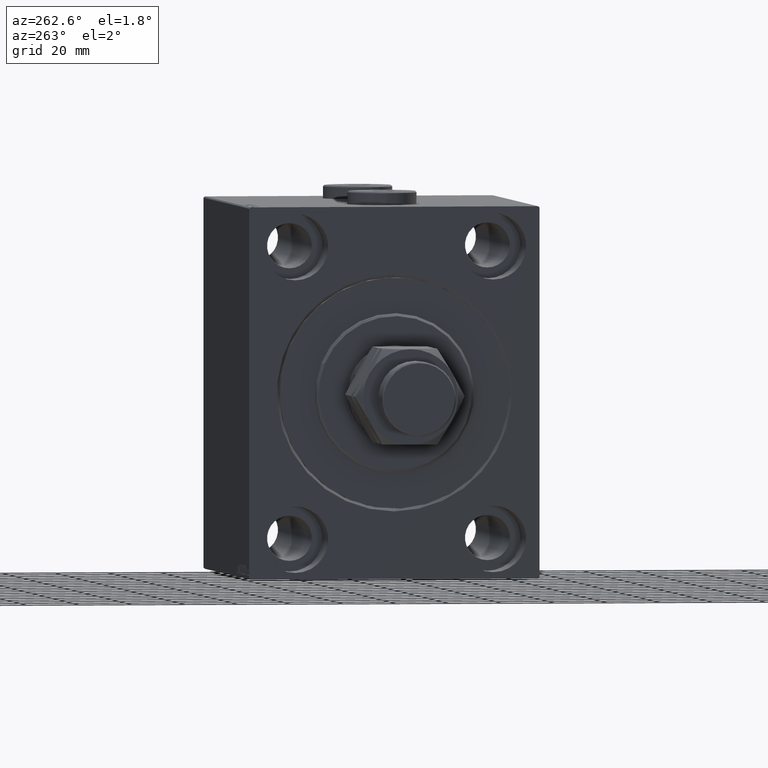
[diagram: clean part render]
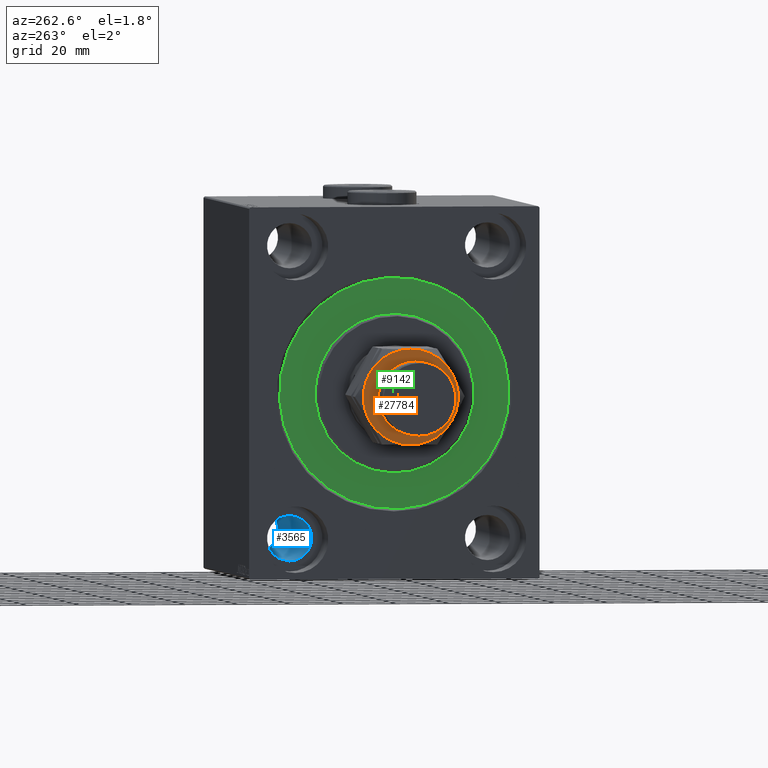
[diagram: same view with three faces highlighted in distinct colors, each labeled with its STEP entity id]
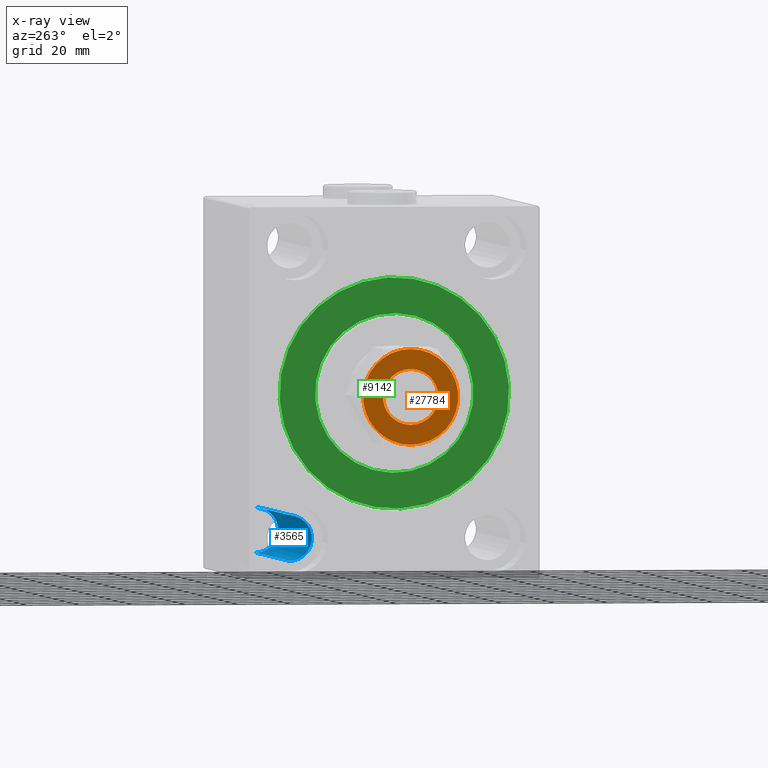
[diagram: x-ray of the same camera — body ghosted, the three highlighted faces saturated]
A machine part, auxiliary view with three faces highlighted in distinct colors.
The next image is the same camera in x-ray (body ghosted, the three faces saturated) — at least one of them is partly hidden behind the body in this view.
Their STEP definitions:

[orange] entity #27784 — the highlighted planar face has unit normal (-1, 0, 0).
#792 = VERTEX_POINT ( 'NONE', #11089 ) ;
#814 = DIRECTION ( 'NONE',  ( 0.000000000000000000, 0.000000000000000000, 1.000000000000000000 ) ) ;
#1730 = ORIENTED_EDGE ( 'NONE', *, *, #36325, .T. ) ;
#2429 = EDGE_CURVE ( 'NONE', #27737, #37353, #19539, .T. ) ;
#2515 = AXIS2_PLACEMENT_3D ( 'NONE', #6896, #21632, #36152 ) ;
#2616 = AXIS2_PLACEMENT_3D ( 'NONE', #16016, #814, #15309 ) ;
#3070 = CARTESIAN_POINT ( 'NONE',  ( 0.000000000000000000, 0.000000000000000000, 34.00000000000000000 ) ) ;
#3782 = CIRCLE ( 'NONE', #20484, 10.49999999999999822 ) ;
#3787 = CARTESIAN_POINT ( 'NONE',  ( -9.000000000000000000, 15.58845726811988897, 34.00000000000000000 ) ) ;
#3986 = DIRECTION ( 'NONE',  ( 0.000000000000000000, 0.000000000000000000, 1.000000000000000000 ) ) ;
#4527 = CARTESIAN_POINT ( 'NONE',  ( 0.000000000000000000, 0.000000000000000000, 34.00000000000000000 ) ) ;
#4629 = AXIS2_PLACEMENT_3D ( 'NONE', #4527, #37358, #4759 ) ;
#4759 = DIRECTION ( 'NONE',  ( 1.000000000000000000, 0.000000000000000000, 0.000000000000000000 ) ) ;
#5254 = CARTESIAN_POINT ( 'NONE',  ( 0.000000000000000000, 0.000000000000000000, 34.00000000000000000 ) ) ;
#6896 = CARTESIAN_POINT ( 'NONE',  ( 0.000000000000000000, 0.000000000000000000, 34.00000000000000000 ) ) ;
#7098 = DIRECTION ( 'NONE',  ( 1.000000000000000000, 0.000000000000000000, 0.000000000000000000 ) ) ;
#8444 = DIRECTION ( 'NONE',  ( 0.000000000000000000, 0.000000000000000000, 1.000000000000000000 ) ) ;
#9140 = VERTEX_POINT ( 'NONE', #40618 ) ;
#9741 = FACE_BOUND ( 'NONE', #11188, .T. ) ;
#10404 = EDGE_LOOP ( 'NONE', ( #35350, #22254, #46229, #1730, #22459, #12201 ) ) ;
#10836 = DIRECTION ( 'NONE',  ( 1.000000000000000000, 0.000000000000000000, 0.000000000000000000 ) ) ;
#10838 = ORIENTED_EDGE ( 'NONE', *, *, #43616, .T. ) ;
#11089 = CARTESIAN_POINT ( 'NONE',  ( -9.000000000000000000, -15.58845726811989074, 34.00000000000000000 ) ) ;
#11104 = CARTESIAN_POINT ( 'NONE',  ( 0.000000000000000000, 0.000000000000000000, 34.00000000000000000 ) ) ;
#11188 = EDGE_LOOP ( 'NONE', ( #17414, #10838 ) ) ;
#12201 = ORIENTED_EDGE ( 'NONE', *, *, #18691, .T. ) ;
#12304 = EDGE_CURVE ( 'NONE', #9140, #32121, #3782, .T. ) ;
#13398 = CIRCLE ( 'NONE', #25571, 17.99999999999999645 ) ;
#13458 = CIRCLE ( 'NONE', #43119, 10.49999999999999822 ) ;
#14032 = VERTEX_POINT ( 'NONE', #3787 ) ;
#15119 = CARTESIAN_POINT ( 'NONE',  ( 0.000000000000000000, 0.000000000000000000, 34.00000000000000000 ) ) ;
#15309 = DIRECTION ( 'NONE',  ( 1.000000000000000000, 0.000000000000000000, 0.000000000000000000 ) ) ;
#15345 = CARTESIAN_POINT ( 'NONE',  ( 0.000000000000000000, 0.000000000000000000, 34.00000000000000000 ) ) ;
#15606 = CIRCLE ( 'NONE', #39935, 17.99999999999999645 ) ;
#16016 = CARTESIAN_POINT ( 'NONE',  ( 0.000000000000000000, 0.000000000000000000, 34.00000000000000000 ) ) ;
#16514 = VERTEX_POINT ( 'NONE', #28675 ) ;
#17334 = DIRECTION ( 'NONE',  ( -0.000000000000000000, -0.000000000000000000, -1.000000000000000000 ) ) ;
#17414 = ORIENTED_EDGE ( 'NONE', *, *, #12304, .T. ) ;
#18691 = EDGE_CURVE ( 'NONE', #792, #39961, #26669, .T. ) ;
#18718 = DIRECTION ( 'NONE',  ( 1.000000000000000000, 0.000000000000000000, 0.000000000000000000 ) ) ;
#18996 = DIRECTION ( 'NONE',  ( 0.000000000000000000, 0.000000000000000000, 1.000000000000000000 ) ) ;
#19539 = CIRCLE ( 'NONE', #37003, 17.99999999999999645 ) ;
#20484 = AXIS2_PLACEMENT_3D ( 'NONE', #3070, #17334, #7098 ) ;
#21632 = DIRECTION ( 'NONE',  ( 0.000000000000000000, 0.000000000000000000, 1.000000000000000000 ) ) ;
#22254 = ORIENTED_EDGE ( 'NONE', *, *, #2429, .T. ) ;
#22459 = ORIENTED_EDGE ( 'NONE', *, *, #38859, .T. ) ;
#22731 = DIRECTION ( 'NONE',  ( -0.000000000000000000, -0.000000000000000000, -1.000000000000000000 ) ) ;
#23133 = CIRCLE ( 'NONE', #2616, 17.99999999999999645 ) ;
#25210 = FACE_OUTER_BOUND ( 'NONE', #10404, .T. ) ;
#25409 = AXIS2_PLACEMENT_3D ( 'NONE', #5254, #31176, #41406 ) ;
#25571 = AXIS2_PLACEMENT_3D ( 'NONE', #40888, #18996, #33525 ) ;
#26669 = CIRCLE ( 'NONE', #4629, 17.99999999999999645 ) ;
#27567 = EDGE_CURVE ( 'NONE', #39961, #27737, #27690, .T. ) ;
#27690 = CIRCLE ( 'NONE', #25409, 17.99999999999999645 ) ;
#27737 = VERTEX_POINT ( 'NONE', #28080 ) ;
#27784 = ADVANCED_FACE ( 'NONE', ( #9741, #25210 ), #39494, .T. ) ;
#28080 = CARTESIAN_POINT ( 'NONE',  ( 17.99999999999999645, 0.000000000000000000, 34.00000000000000000 ) ) ;
#28211 = CARTESIAN_POINT ( 'NONE',  ( 9.000000000000001776, -15.58845726811988897, 34.00000000000000000 ) ) ;
#28416 = EDGE_CURVE ( 'NONE', #37353, #14032, #23133, .T. ) ;
#28675 = CARTESIAN_POINT ( 'NONE',  ( -17.99999999999999645, 0.000000000000000000, 34.00000000000000000 ) ) ;
#31176 = DIRECTION ( 'NONE',  ( 0.000000000000000000, 0.000000000000000000, 1.000000000000000000 ) ) ;
#32121 = VERTEX_POINT ( 'NONE', #42321 ) ;
#33525 = DIRECTION ( 'NONE',  ( 1.000000000000000000, 0.000000000000000000, 0.000000000000000000 ) ) ;
#35350 = ORIENTED_EDGE ( 'NONE', *, *, #27567, .T. ) ;
#36152 = DIRECTION ( 'NONE',  ( 1.000000000000000000, 0.000000000000000000, -0.000000000000000000 ) ) ;
#36325 = EDGE_CURVE ( 'NONE', #14032, #16514, #15606, .T. ) ;
#36549 = DIRECTION ( 'NONE',  ( 1.000000000000000000, 0.000000000000000000, 0.000000000000000000 ) ) ;
#37003 = AXIS2_PLACEMENT_3D ( 'NONE', #11104, #3986, #18718 ) ;
#37353 = VERTEX_POINT ( 'NONE', #37429 ) ;
#37358 = DIRECTION ( 'NONE',  ( 0.000000000000000000, 0.000000000000000000, 1.000000000000000000 ) ) ;
#37429 = CARTESIAN_POINT ( 'NONE',  ( 8.999999999999998224, 15.58845726811989074, 34.00000000000000000 ) ) ;
#38859 = EDGE_CURVE ( 'NONE', #16514, #792, #13398, .T. ) ;
#39494 = PLANE ( 'NONE',  #2515 ) ;
#39935 = AXIS2_PLACEMENT_3D ( 'NONE', #15345, #8444, #36549 ) ;
#39961 = VERTEX_POINT ( 'NONE', #28211 ) ;
#40618 = CARTESIAN_POINT ( 'NONE',  ( 10.49999999999999822, 0.000000000000000000, 34.00000000000000000 ) ) ;
#40888 = CARTESIAN_POINT ( 'NONE',  ( 0.000000000000000000, 0.000000000000000000, 34.00000000000000000 ) ) ;
#41406 = DIRECTION ( 'NONE',  ( 1.000000000000000000, 0.000000000000000000, 0.000000000000000000 ) ) ;
#42321 = CARTESIAN_POINT ( 'NONE',  ( -10.49999999999999822, 1.285879139104720633E-15, 34.00000000000000000 ) ) ;
#43119 = AXIS2_PLACEMENT_3D ( 'NONE', #15119, #22731, #10836 ) ;
#43616 = EDGE_CURVE ( 'NONE', #32121, #9140, #13458, .T. ) ;
#46229 = ORIENTED_EDGE ( 'NONE', *, *, #28416, .T. ) ;

[blue] entity #3565 — the highlighted cylindrical surface (edge-blend (fillet) strip) has radius 8.5 mm, axis along (-1, -0, -0).
#1022 = CARTESIAN_POINT ( 'NONE',  ( 17.00000000000000000, 37.49999999999997868, -54.99999999999999289 ) ) ;
#2157 = VECTOR ( 'NONE', #6437, 1000.000000000000000 ) ;
#2449 = LINE ( 'NONE', #9343, #23160 ) ;
#2628 = CARTESIAN_POINT ( 'NONE',  ( 133.0000000000000000, 37.49999999999997868, -63.49999999999998579 ) ) ;
#3565 = ADVANCED_FACE ( 'NONE', ( #14829 ), #25552, .F. ) ;
#5004 = EDGE_CURVE ( 'NONE', #21761, #14454, #32141, .T. ) ;
#6437 = DIRECTION ( 'NONE',  ( -1.000000000000000000, -0.000000000000000000, -0.000000000000000000 ) ) ;
#7713 = CARTESIAN_POINT ( 'NONE',  ( 133.0000000000000000, 37.49999999999997868, -54.99999999999999289 ) ) ;
#8443 = DIRECTION ( 'NONE',  ( 0.000000000000000000, 0.000000000000000000, -1.000000000000000000 ) ) ;
#9343 = CARTESIAN_POINT ( 'NONE',  ( 133.0000000000000000, 37.49999999999997868, -46.50000000000000000 ) ) ;
#9812 = DIRECTION ( 'NONE',  ( -1.000000000000000000, -0.000000000000000000, -0.000000000000000000 ) ) ;
#12853 = ORIENTED_EDGE ( 'NONE', *, *, #42067, .F. ) ;
#14454 = VERTEX_POINT ( 'NONE', #33693 ) ;
#14829 = FACE_OUTER_BOUND ( 'NONE', #42331, .T. ) ;
#16047 = DIRECTION ( 'NONE',  ( -1.000000000000000000, -0.000000000000000000, -0.000000000000000000 ) ) ;
#16232 = DIRECTION ( 'NONE',  ( 0.000000000000000000, 0.000000000000000000, 1.000000000000000000 ) ) ;
#18047 = AXIS2_PLACEMENT_3D ( 'NONE', #7713, #44554, #26031 ) ;
#21761 = VERTEX_POINT ( 'NONE', #35687 ) ;
#23160 = VECTOR ( 'NONE', #9812, 1000.000000000000000 ) ;
#23373 = DIRECTION ( 'NONE',  ( -1.000000000000000000, 0.000000000000000000, 0.000000000000000000 ) ) ;
#23558 = CARTESIAN_POINT ( 'NONE',  ( 116.0000000000000000, 37.49999999999997868, -46.50000000000000000 ) ) ;
#25552 = CYLINDRICAL_SURFACE ( 'NONE', #18047, 8.499999999999992895 ) ;
#26031 = DIRECTION ( 'NONE',  ( 0.000000000000000000, 0.000000000000000000, 1.000000000000000000 ) ) ;
#29474 = VERTEX_POINT ( 'NONE', #32662 ) ;
#32141 = LINE ( 'NONE', #2628, #2157 ) ;
#32547 = CIRCLE ( 'NONE', #38620, 8.499999999999992895 ) ;
#32662 = CARTESIAN_POINT ( 'NONE',  ( 17.00000000000000000, 37.49999999999997868, -46.50000000000000000 ) ) ;
#33152 = EDGE_CURVE ( 'NONE', #44106, #29474, #2449, .T. ) ;
#33693 = CARTESIAN_POINT ( 'NONE',  ( 17.00000000000000000, 37.49999999999997868, -63.49999999999998579 ) ) ;
#34061 = ORIENTED_EDGE ( 'NONE', *, *, #42546, .T. ) ;
#35649 = ORIENTED_EDGE ( 'NONE', *, *, #33152, .F. ) ;
#35687 = CARTESIAN_POINT ( 'NONE',  ( 116.0000000000000000, 37.49999999999997868, -63.49999999999998579 ) ) ;
#38620 = AXIS2_PLACEMENT_3D ( 'NONE', #41036, #16047, #8443 ) ;
#39162 = ORIENTED_EDGE ( 'NONE', *, *, #5004, .T. ) ;
#40099 = CIRCLE ( 'NONE', #45437, 8.499999999999992895 ) ;
#41036 = CARTESIAN_POINT ( 'NONE',  ( 116.0000000000000000, 37.49999999999997868, -54.99999999999999289 ) ) ;
#42067 = EDGE_CURVE ( 'NONE', #21761, #44106, #32547, .T. ) ;
#42331 = EDGE_LOOP ( 'NONE', ( #12853, #39162, #34061, #35649 ) ) ;
#42546 = EDGE_CURVE ( 'NONE', #14454, #29474, #40099, .T. ) ;
#44106 = VERTEX_POINT ( 'NONE', #23558 ) ;
#44554 = DIRECTION ( 'NONE',  ( -1.000000000000000000, -0.000000000000000000, -0.000000000000000000 ) ) ;
#45437 = AXIS2_PLACEMENT_3D ( 'NONE', #1022, #23373, #16232 ) ;

[green] entity #9142 — the highlighted planar face has unit normal (1, 0, -0).
#993 = AXIS2_PLACEMENT_3D ( 'NONE', #45704, #16672, #5508 ) ;
#1208 = CARTESIAN_POINT ( 'NONE',  ( 0.000000000000000000, 3.673940397442059178E-15, -30.00000000000000000 ) ) ;
#2242 = FACE_OUTER_BOUND ( 'NONE', #10023, .T. ) ;
#2830 = CIRCLE ( 'NONE', #5879, 43.50000000000000000 ) ;
#5161 = ORIENTED_EDGE ( 'NONE', *, *, #24665, .F. ) ;
#5215 = CIRCLE ( 'NONE', #24199, 43.50000000000000000 ) ;
#5508 = DIRECTION ( 'NONE',  ( 0.000000000000000000, 0.000000000000000000, -1.000000000000000000 ) ) ;
#5857 = EDGE_CURVE ( 'NONE', #37804, #40286, #5215, .T. ) ;
#5879 = AXIS2_PLACEMENT_3D ( 'NONE', #21554, #32285, #46779 ) ;
#6312 = EDGE_CURVE ( 'NONE', #40286, #37804, #2830, .T. ) ;
#8091 = DIRECTION ( 'NONE',  ( -1.000000000000000000, 0.000000000000000000, 0.000000000000000000 ) ) ;
#8195 = VERTEX_POINT ( 'NONE', #32820 ) ;
#8785 = CARTESIAN_POINT ( 'NONE',  ( 0.000000000000000000, 0.000000000000000000, 0.000000000000000000 ) ) ;
#9142 = ADVANCED_FACE ( 'NONE', ( #31035, #2242 ), #38406, .F. ) ;
#10023 = EDGE_LOOP ( 'NONE', ( #14331, #12568 ) ) ;
#10924 = CIRCLE ( 'NONE', #14729, 30.00000000000000000 ) ;
#12568 = ORIENTED_EDGE ( 'NONE', *, *, #5857, .F. ) ;
#14331 = ORIENTED_EDGE ( 'NONE', *, *, #6312, .F. ) ;
#14682 = ORIENTED_EDGE ( 'NONE', *, *, #30273, .F. ) ;
#14729 = AXIS2_PLACEMENT_3D ( 'NONE', #45354, #34186, #45116 ) ;
#16364 = VERTEX_POINT ( 'NONE', #1208 ) ;
#16672 = DIRECTION ( 'NONE',  ( 1.000000000000000000, -0.000000000000000000, 0.000000000000000000 ) ) ;
#20313 = DIRECTION ( 'NONE',  ( 0.000000000000000000, 0.000000000000000000, 1.000000000000000000 ) ) ;
#21450 = EDGE_LOOP ( 'NONE', ( #14682, #5161 ) ) ;
#21554 = CARTESIAN_POINT ( 'NONE',  ( 0.000000000000000000, 0.000000000000000000, 0.000000000000000000 ) ) ;
#21880 = AXIS2_PLACEMENT_3D ( 'NONE', #27460, #41966, #20313 ) ;
#23075 = DIRECTION ( 'NONE',  ( 0.000000000000000000, 0.000000000000000000, 1.000000000000000000 ) ) ;
#24199 = AXIS2_PLACEMENT_3D ( 'NONE', #8785, #8091, #23075 ) ;
#24665 = EDGE_CURVE ( 'NONE', #16364, #8195, #46607, .T. ) ;
#27460 = CARTESIAN_POINT ( 'NONE',  ( 0.000000000000000000, 0.000000000000000000, 0.000000000000000000 ) ) ;
#28336 = CARTESIAN_POINT ( 'NONE',  ( 0.000000000000000000, 0.000000000000000000, -43.50000000000000000 ) ) ;
#30273 = EDGE_CURVE ( 'NONE', #8195, #16364, #10924, .T. ) ;
#31035 = FACE_BOUND ( 'NONE', #21450, .T. ) ;
#32285 = DIRECTION ( 'NONE',  ( -1.000000000000000000, 0.000000000000000000, 0.000000000000000000 ) ) ;
#32820 = CARTESIAN_POINT ( 'NONE',  ( 0.000000000000000000, 0.000000000000000000, 30.00000000000000000 ) ) ;
#34186 = DIRECTION ( 'NONE',  ( 1.000000000000000000, -0.000000000000000000, 0.000000000000000000 ) ) ;
#37804 = VERTEX_POINT ( 'NONE', #41398 ) ;
#38406 = PLANE ( 'NONE',  #21880 ) ;
#40286 = VERTEX_POINT ( 'NONE', #28336 ) ;
#41398 = CARTESIAN_POINT ( 'NONE',  ( 0.000000000000000000, 5.327213576290986044E-15, 43.50000000000000000 ) ) ;
#41966 = DIRECTION ( 'NONE',  ( -1.000000000000000000, 0.000000000000000000, 0.000000000000000000 ) ) ;
#45116 = DIRECTION ( 'NONE',  ( 0.000000000000000000, 0.000000000000000000, -1.000000000000000000 ) ) ;
#45354 = CARTESIAN_POINT ( 'NONE',  ( 0.000000000000000000, 0.000000000000000000, 0.000000000000000000 ) ) ;
#45704 = CARTESIAN_POINT ( 'NONE',  ( 0.000000000000000000, 0.000000000000000000, 0.000000000000000000 ) ) ;
#46607 = CIRCLE ( 'NONE', #993, 30.00000000000000000 ) ;
#46779 = DIRECTION ( 'NONE',  ( 0.000000000000000000, 0.000000000000000000, 1.000000000000000000 ) ) ;